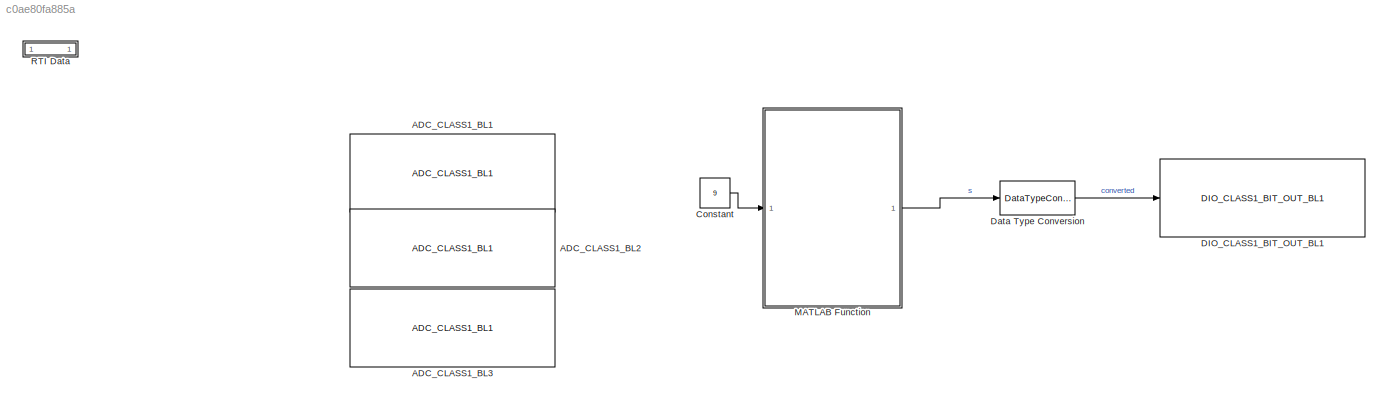
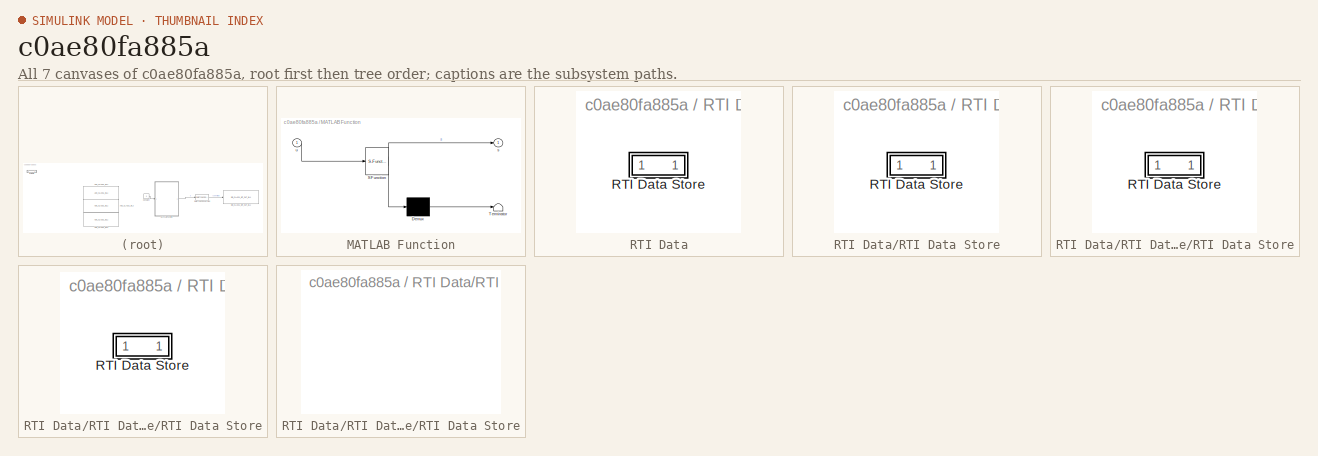
[diagram: thumbnail index - all 7 canvases of the model, root first then tree order]
MODEL slx_c0ae80fa885a
KIND model
CONFIG AbsTol = auto
CONFIG EnableMultiTasking = off
CONFIG FixedStep = 0.5
CONFIG InitFcn = , if any(exist('rtifpga_mdlclblib', 'file') ~= 0), rtifpga_mdlclblib('Init', bdroot); end,\n
CONFIG MaxStep = auto
CONFIG MinStep = auto
CONFIG PostLoadFcn = , if any(exist('dsrtsu_mdlpostloadfcn', 'file') ~= 0), dsrtsu_mdlpostloadfcn('Execute', bdroot); end, \n
CONFIG RelTol = 1e-3
CONFIG SampleTimeConstraint = Unconstrained
CONFIG Solver = ode1
CONFIG SolverName = ode1
CONFIG StartTime = 0.0
CONFIG StopTime = Inf
BLOCK [Reference] ADC_CLASS1_BL1  REF=rti1202lib_adc_class1/ADC_CLASS1_BL1
  Ports = [0, 1]
  SourceBlock = rti1202lib_adc_class1/ADC_CLASS1_BL1
  SourceType = RTI
BLOCK [Reference] ADC_CLASS1_BL2  REF=rti1202lib_adc_class1/ADC_CLASS1_BL1
  Ports = [0, 1]
  SourceBlock = rti1202lib_adc_class1/ADC_CLASS1_BL1
  SourceType = RTI
BLOCK [Reference] ADC_CLASS1_BL3  REF=rti1202lib_adc_class1/ADC_CLASS1_BL1
  Ports = [0, 1]
  SourceBlock = rti1202lib_adc_class1/ADC_CLASS1_BL1
  SourceType = RTI
BLOCK [Constant] Constant
  Value = 9
BLOCK [Reference] DIO_CLASS1_BIT_OUT_BL1  REF=rti1202lib_dio_class1/DIO_CLASS1_BIT_OUT_BL1
  Ports = [1]
  SourceBlock = rti1202lib_dio_class1/DIO_CLASS1_BIT_OUT_BL1
  SourceType = RTI
BLOCK [DataTypeConversion] Data Type Conversion
  RndMeth = Floor
  SaturateOnIntegerOverflow = off
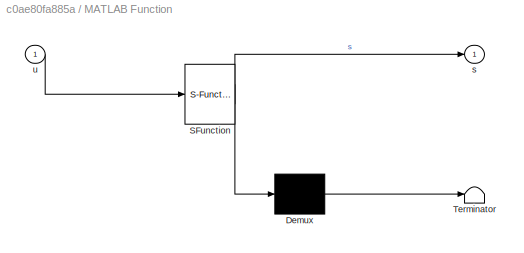
BLOCK [SubSystem] MATLAB Function
  ErrorFcn = Stateflow.Translate.translate
  PermitHierarchicalResolution = ExplicitOnly
  Ports = [1, 1]
  RequestExecContextInheritance = off
  SFBlockType = MATLAB Function
  TreatAsAtomicUnit = on
BLOCK [Demux] MATLAB Function/ Demux 
  Outputs = 1
  Ports = [1, 1]
BLOCK [S-Function] MATLAB Function/ SFunction 
  EnableBusSupport = on
  FunctionName = sf_sfun
  PortCounts = [1 2]
  Ports = [1, 2]
  SFcnIsStateOwnerBlock = off
  SFunctionDeploymentMode = off
  Tag = Stateflow S-Function 2
BLOCK [Terminator] MATLAB Function/ Terminator 
BLOCK [Outport] MATLAB Function/s
BLOCK [Inport] MATLAB Function/u
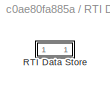
BLOCK [SubSystem] RTI Data
  CopyFcn = if exist('rtidc'), try,  rtidc('DataHostBlockClbCopy', gcbh); catch, disp(['Warning: ''CopyFcn'' for RTI Data block failed: ' lasterr]); end, end,
  DeleteFcn = if exist('rtidc'), try,  rtidc('DataHostBlockClbDelete', gcbh); catch, disp(['Warning: ''DeleteFcn'' for RTI Data block failed: ' lasterr]); end, end,
  LoadFcn = if exist('rtidc'), try,  rtidc('DataHostBlockClbLoad', gcbh); catch, disp(['Warning: ''LoadFcn'' for RTI Data block failed: ' lasterr]); end, end,
  ModelCloseFcn = if exist('rtidc'), try,  rtidc('DataHostBlockClbModelClose', gcbh); catch, disp(['Warning: ''ModelCloseFcn'' for RTI Data block failed: ' lasterr]); end, end,
  NameChangeFcn = if exist('rtidc'), try,  rtidc('DataHostBlockClbNameChange', gcbh); catch, disp(['Warning: ''NameChangeFcn'' for RTI Data block failed: ' lasterr]); end, end,
  Ports = []
  PostSaveFcn = if exist('rtidc'), try,  rtidc('DataHostBlockClbPostSave', gcbh); catch, disp(['Warning: ''PostSaveFcn'' for RTI Data block failed: ' lasterr]); end, end,
  PreSaveFcn = if exist('rtidc'), try,  rtidc('DataHostBlockClbPreSave', gcbh); catch, disp(['Warning: ''PreSaveFcn'' for RTI Data block failed: ' lasterr]); end, end,
  RequestExecContextInheritance = off
  Tag = struct('RTIDataServer',struct('RTIDataServerVs','2','RTIModelDescription','struct(''main'',''test_states'',''sub'','''',''isMp'',0)'))
BLOCK [SubSystem] RTI Data/RTI Data Store
  Ports = []
  RequestExecContextInheritance = off
  Tag = struct('public',struct('sub',struct('name',{{'test_states'}},'data',{{struct('TH',struct('thTaskInfo',struct('taskType',{'TIMER','HWINT','TMRINT','SWINT','GLINT'},'tasksNumOf',{1,0,0,0,0},'srcIds',{{'TIMERA'},{},{},{},{}},'taskNames',{{['Timer Task 1']},{},{},{},{}})),'th_tc',struct('dataType','TASK','taskGroupId','','taskGroupList',{{}},'taskSchedulingPolicy','FCFS','taskType','TIMER','blkh',-1,'...<+739ch>
BLOCK [SubSystem] RTI Data/RTI Data Store/RTI Data Store
  Ports = []
  RequestExecContextInheritance = off
BLOCK [SubSystem] RTI Data/RTI Data Store/RTI Data Store/RTI Data Store
  Ports = []
  RequestExecContextInheritance = off
BLOCK [SubSystem] RTI Data/RTI Data Store/RTI Data Store/RTI Data Store/RTI Data Store
  Ports = []
  RequestExecContextInheritance = off
LINE Constant:1 -> MATLAB Function:1
LINE Data Type Conversion:1 -> DIO_CLASS1_BIT_OUT_BL1:1
LINE MATLAB Function:1 -> Data Type Conversion:1
CHART MATLAB Function states=1 transitions=1
  STATE_LABEL 'eML_blk_kernel()'
  STATE_LABEL 'SCRIPT:\nfunction s = fcn(u)\npersistent old state\nif isempty(old)\n    old = 0b010101;\n    state = 0;\nend\n\nif(u == 0)\n    new = 0b010101;\nelseif(u == 1)\n    new = 0b011100;\nelseif (u == 2)\n    new = 0b001110;\nelseif (u == 3)\n    new = 0b000111;\nelseif (u == 4)\n    new = 0b100011;\nelseif (u == 5)\n    new = 0b110001;\nelseif (u == 6)\n    new = 0b111000;\nelse \n    new = 0b101010;\nend\n\n\nif new ~= old\n   ...<+392ch>'
CHART  states=0 transitions=0
